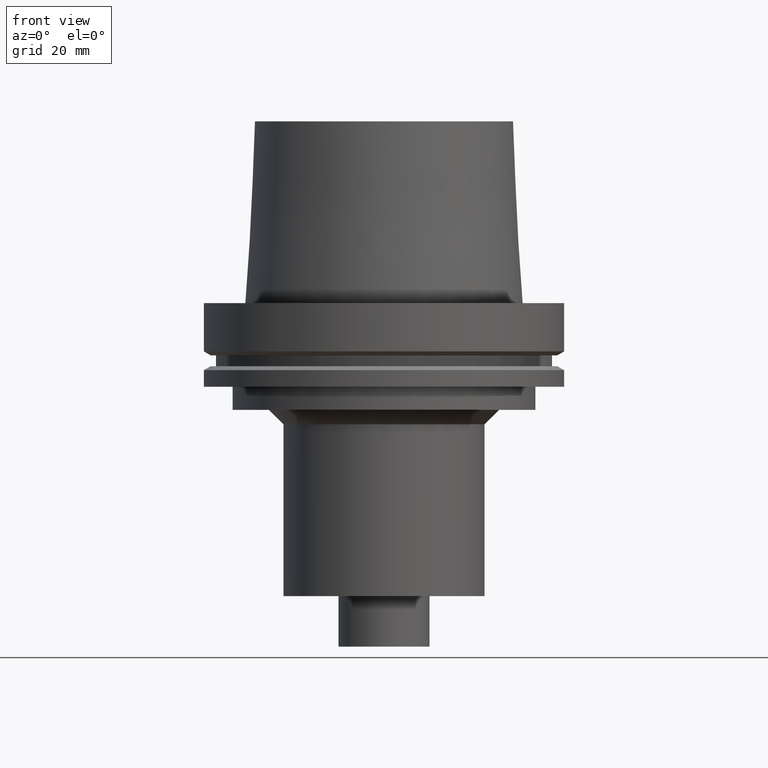
[diagram: clean part render]
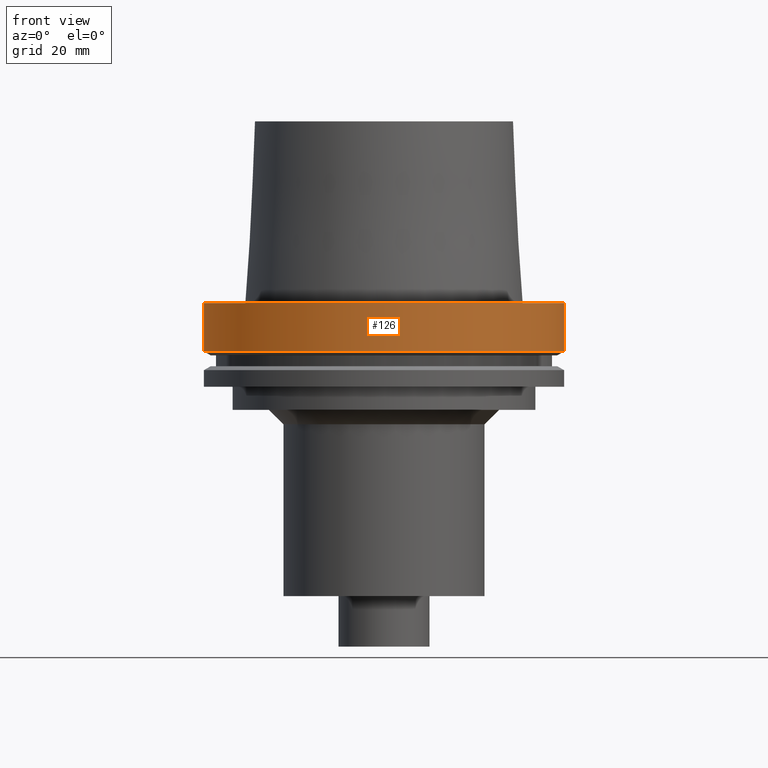
[diagram: same view with one face highlighted and labeled with its STEP entity id]
A machine part, front view. The second image highlights one B-rep face of the part: STEP entity #126.
In plain terms, the highlighted cylindrical surface (bore or boss wall) has radius 62.5 mm, axis along (0, 0, -1).
Its self-contained STEP definition (entity closure, byte-faithful):
#88=EDGE_CURVE('Unnamed[1]',#210,#210,#211,.T.);
#126=ADVANCED_FACE('Unnamed[1]',(#268,#269),#270,.T.);
#140=EDGE_CURVE('Unnamed[1]',#292,#292,#293,.T.);
#210=VERTEX_POINT('',#369);
#211=CIRCLE('',#370,62.5000000000002);
#268=FACE_BOUND('',#442,.T.);
#269=FACE_BOUND('',#443,.T.);
#270=CYLINDRICAL_SURFACE('',#444,62.5000000000001);
#292=VERTEX_POINT('',#471);
#293=CIRCLE('',#472,62.5);
#369=CARTESIAN_POINT('',(-5.58935713239973E-030,62.5000000000002,8.63540424946709E-014));
#370=AXIS2_PLACEMENT_3D('',#538,#539,#540);
#442=EDGE_LOOP('',(#603));
#443=EDGE_LOOP('',(#604));
#444=AXIS2_PLACEMENT_3D('',#605,#606,#607);
#471=CARTESIAN_POINT('',(1.02578894188644E-015,62.5,-16.7524047358084));
#472=AXIS2_PLACEMENT_3D('',#632,#633,#634);
#538=CARTESIAN_POINT('',(-5.22098332203606E-030,-1.04419666440721E-029,8.5265128291212E-014));
#539=DIRECTION('',(6.12323399573677E-017,1.22464679914735E-016,-1.0));
#540=DIRECTION('',(-1.23259516440783E-032,1.0,1.22464679914735E-016));
#603=ORIENTED_EDGE('',*,*,#140,.F.);
#604=ORIENTED_EDGE('',*,*,#88,.T.);
#605=CARTESIAN_POINT('',(5.12894470943215E-016,1.02578894188643E-015,-8.37620236790416));
#606=DIRECTION('',(6.12323399573677E-017,1.22464679914735E-016,-1.0));
#607=DIRECTION('',(-1.23259516440783E-032,1.0,1.22464679914735E-016));
#632=CARTESIAN_POINT('',(1.02578894188644E-015,2.05157788377287E-015,-16.7524047358084));
#633=DIRECTION('',(6.12323399573676E-017,1.22464679914735E-016,-1.0));
#634=DIRECTION('',(-1.23259516440783E-032,1.0,1.22464679914735E-016));